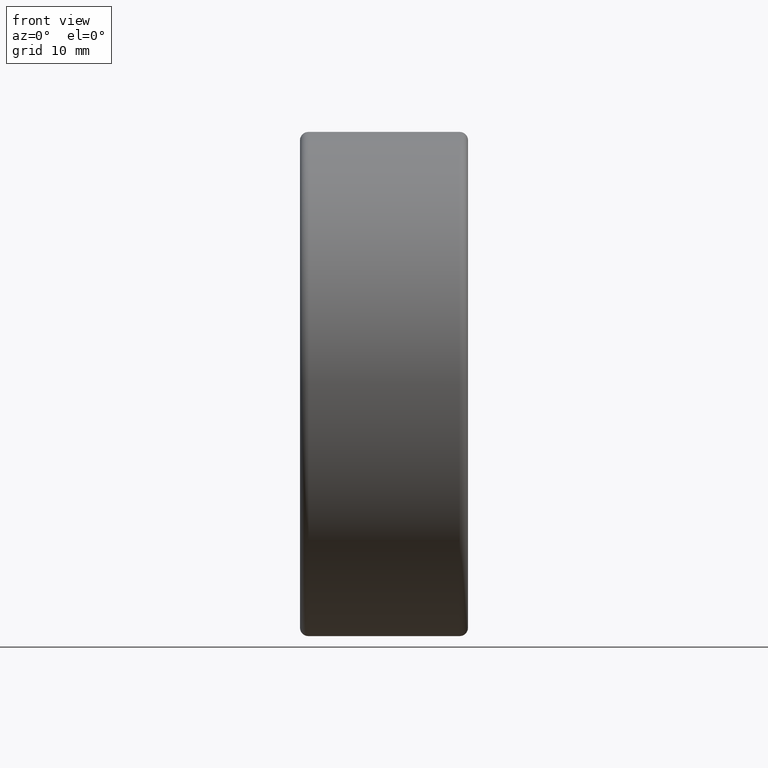
[diagram: clean part render]
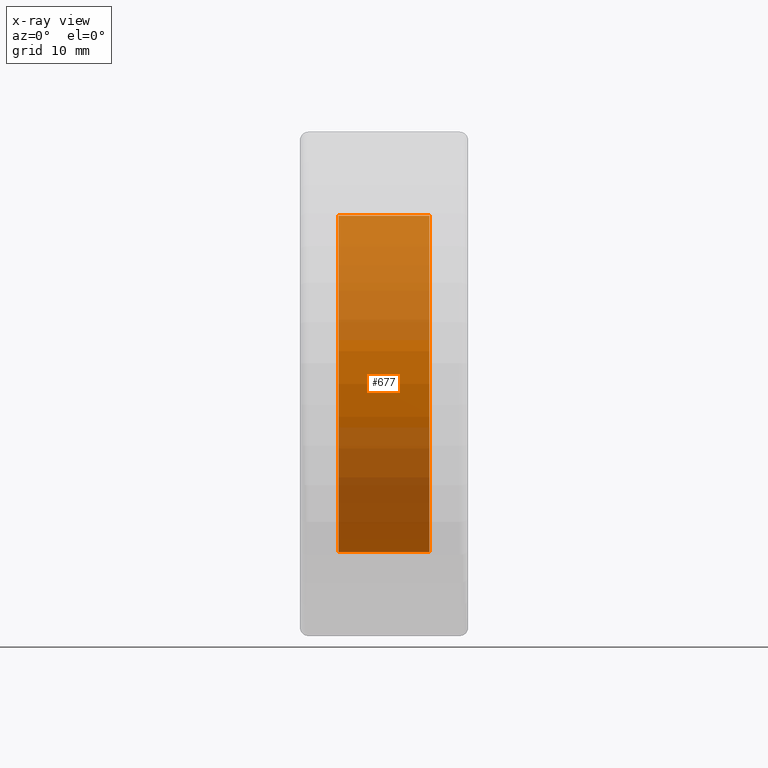
[diagram: x-ray — body ghosted, one internal face saturated and labeled with its STEP entity id]
A machine part, front view, then the same camera in x-ray: the body is ghosted and one INTERNAL B-rep face — a face not visible from any outside direction — is saturated and labeled: STEP entity #677.
In plain terms, the highlighted cylindrical surface (partial cylindrical patch) has radius 20 mm, axis along (1, 0, 0).
Its self-contained STEP definition (entity closure, byte-faithful):
#58 = FACE_OUTER_BOUND ( 'NONE', #426, .T. ) ;
#195 = ORIENTED_EDGE ( 'NONE', *, *, #3849, .T. ) ;
#211 = CARTESIAN_POINT ( 'NONE',  ( 6.000000000000000000, 0.0000000000000000000, -20.00000000000000000 ) ) ;
#366 = LINE ( 'NONE', #2595, #4610 ) ;
#426 = EDGE_LOOP ( 'NONE', ( #2073, #5193, #195, #2624 ) ) ;
#472 = VERTEX_POINT ( 'NONE', #4425 ) ;
#616 = EDGE_CURVE ( 'NONE', #4743, #3123, #1338, .T. ) ;
#662 = DIRECTION ( 'NONE',  ( 0.0000000000000000000, 0.0000000000000000000, -1.000000000000000000 ) ) ;
#677 = ADVANCED_FACE ( 'NONE', ( #58 ), #5309, .T. ) ;
#684 = DIRECTION ( 'NONE',  ( 1.000000000000000000, 0.0000000000000000000, 0.0000000000000000000 ) ) ;
#945 = AXIS2_PLACEMENT_3D ( 'NONE', #4995, #2450, #2386 ) ;
#1338 = CIRCLE ( 'NONE', #1979, 20.00000000000000000 ) ;
#1702 = CARTESIAN_POINT ( 'NONE',  ( 11.40000000000000000, 0.0000000000000000000, -20.00000000000000000 ) ) ;
#1777 = LINE ( 'NONE', #211, #1967 ) ;
#1878 = AXIS2_PLACEMENT_3D ( 'NONE', #1959, #5393, #2829 ) ;
#1959 = CARTESIAN_POINT ( 'NONE',  ( 6.000000000000000000, 0.0000000000000000000, 0.0000000000000000000 ) ) ;
#1967 = VECTOR ( 'NONE', #4012, 1000.000000000000000 ) ;
#1979 = AXIS2_PLACEMENT_3D ( 'NONE', #3634, #684, #662 ) ;
#2073 = ORIENTED_EDGE ( 'NONE', *, *, #4092, .F. ) ;
#2270 = CARTESIAN_POINT ( 'NONE',  ( 0.5999999999999998700, 2.449293598294706500E-015, 20.00000000000000000 ) ) ;
#2386 = DIRECTION ( 'NONE',  ( 0.0000000000000000000, 0.0000000000000000000, -1.000000000000000000 ) ) ;
#2428 = CARTESIAN_POINT ( 'NONE',  ( 0.5999999999999998700, 0.0000000000000000000, -20.00000000000000000 ) ) ;
#2450 = DIRECTION ( 'NONE',  ( -1.000000000000000000, -0.0000000000000000000, -0.0000000000000000000 ) ) ;
#2595 = CARTESIAN_POINT ( 'NONE',  ( 6.000000000000000000, 2.449293598294706500E-015, 20.00000000000000000 ) ) ;
#2624 = ORIENTED_EDGE ( 'NONE', *, *, #4474, .T. ) ;
#2829 = DIRECTION ( 'NONE',  ( 0.0000000000000000000, 0.0000000000000000000, -1.000000000000000000 ) ) ;
#3123 = VERTEX_POINT ( 'NONE', #2428 ) ;
#3470 = CIRCLE ( 'NONE', #945, 20.00000000000000000 ) ;
#3634 = CARTESIAN_POINT ( 'NONE',  ( 0.5999999999999998700, 0.0000000000000000000, 0.0000000000000000000 ) ) ;
#3849 = EDGE_CURVE ( 'NONE', #3123, #4532, #1777, .T. ) ;
#4012 = DIRECTION ( 'NONE',  ( 1.000000000000000000, 0.0000000000000000000, 0.0000000000000000000 ) ) ;
#4092 = EDGE_CURVE ( 'NONE', #4743, #472, #366, .T. ) ;
#4425 = CARTESIAN_POINT ( 'NONE',  ( 11.40000000000000000, 2.449293598294706500E-015, 20.00000000000000000 ) ) ;
#4474 = EDGE_CURVE ( 'NONE', #4532, #472, #3470, .T. ) ;
#4532 = VERTEX_POINT ( 'NONE', #1702 ) ;
#4610 = VECTOR ( 'NONE', #4784, 1000.000000000000000 ) ;
#4743 = VERTEX_POINT ( 'NONE', #2270 ) ;
#4784 = DIRECTION ( 'NONE',  ( 1.000000000000000000, 0.0000000000000000000, 0.0000000000000000000 ) ) ;
#4995 = CARTESIAN_POINT ( 'NONE',  ( 11.40000000000000000, 0.0000000000000000000, 0.0000000000000000000 ) ) ;
#5193 = ORIENTED_EDGE ( 'NONE', *, *, #616, .T. ) ;
#5309 = CYLINDRICAL_SURFACE ( 'NONE', #1878, 20.00000000000000000 ) ;
#5393 = DIRECTION ( 'NONE',  ( 1.000000000000000000, 0.0000000000000000000, 0.0000000000000000000 ) ) ;